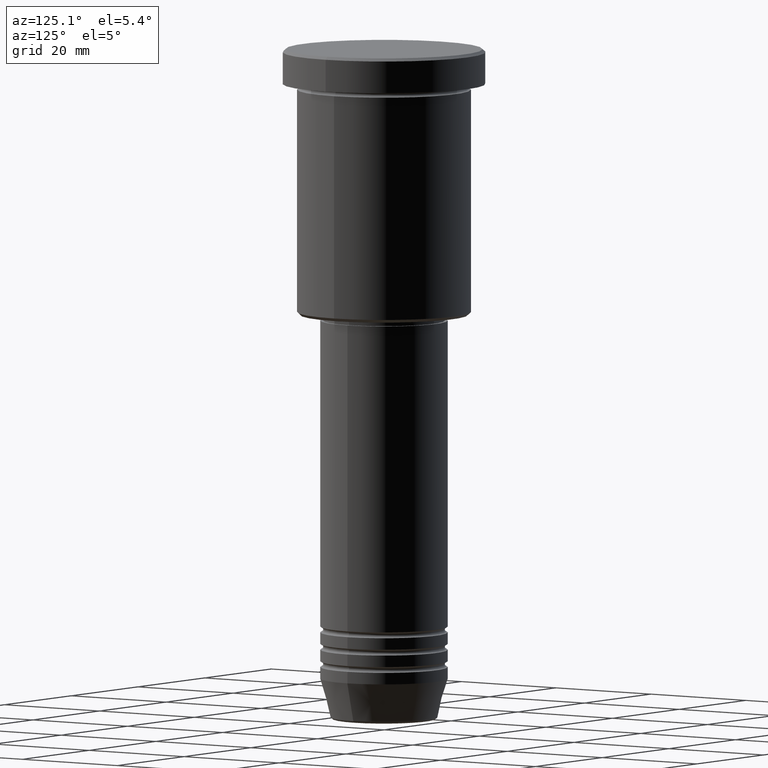
[diagram: clean part render]
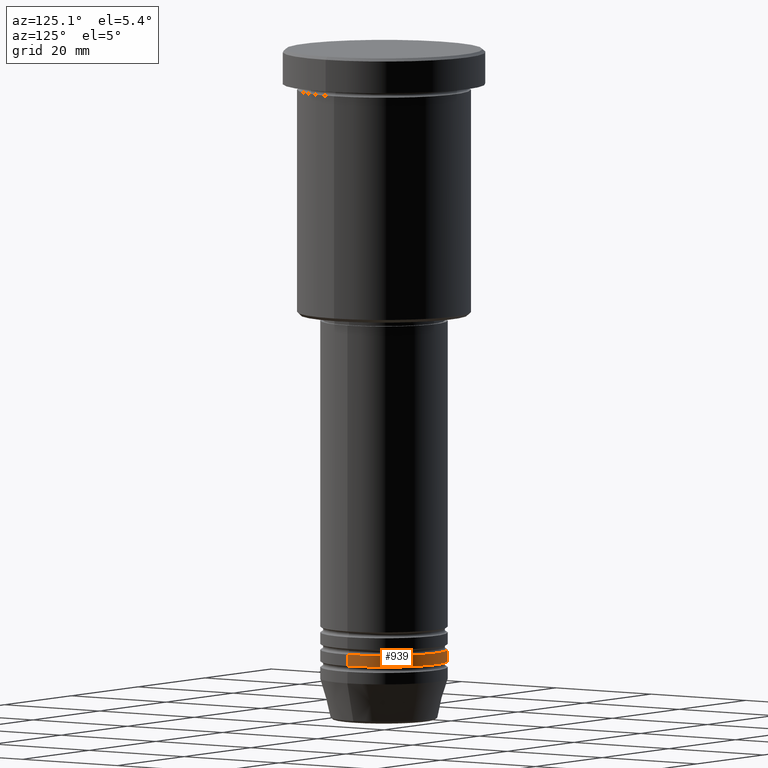
[diagram: same view with one face highlighted and labeled with its STEP entity id]
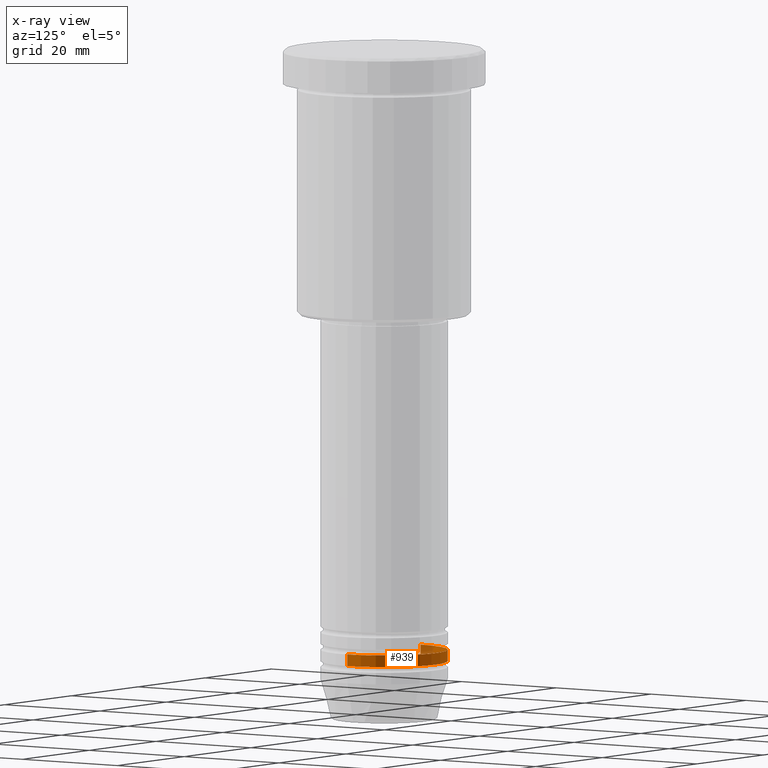
[diagram: x-ray of the same camera — body ghosted, the highlighted face saturated]
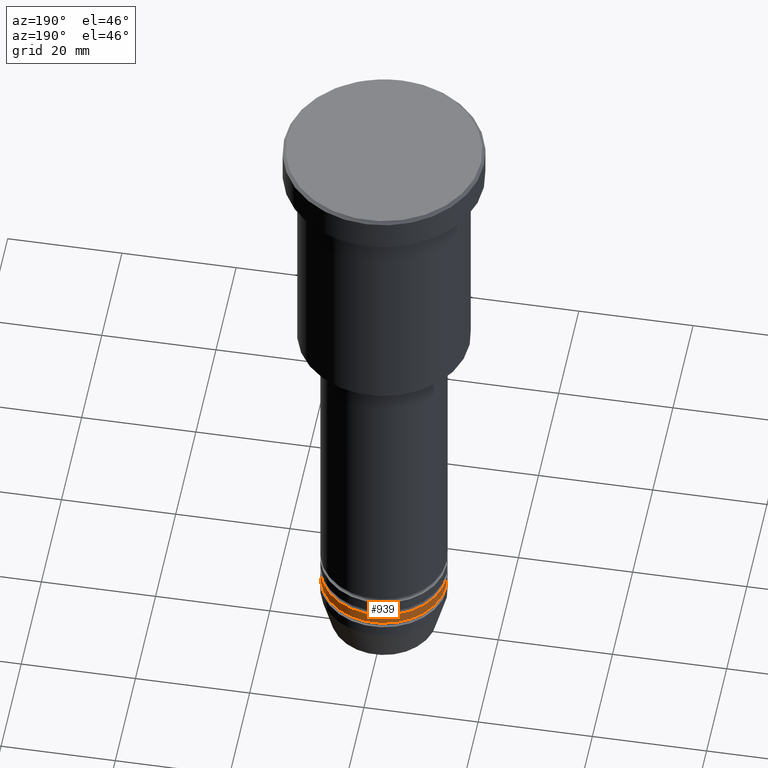
[diagram: same view with one face highlighted and labeled with its STEP entity id]
A machine part, auxiliary view. The second image highlights one B-rep face of the part: STEP entity #939.
The next image is the same camera in x-ray: the body ghosted, the highlighted face saturated — about 9% of this face is hidden behind the body in this view.
A second angle (auxiliary view) of the same face is appended — the face is thin or edge-on in the first view.
In plain terms, the highlighted cylindrical surface (partial cylindrical patch) has radius 11 mm, axis along (-0, -0, 1).
Its self-contained STEP definition (entity closure, byte-faithful):
#19 = CARTESIAN_POINT ( 'NONE',  ( 11.00000000000000000, 0.000000000000000000, -105.9999999999999858 ) ) ;
#24 = DIRECTION ( 'NONE',  ( 1.000000000000000000, 0.000000000000000000, 0.000000000000000000 ) ) ;
#44 = ORIENTED_EDGE ( 'NONE', *, *, #238, .T. ) ;
#84 = FACE_OUTER_BOUND ( 'NONE', #680, .T. ) ;
#127 = AXIS2_PLACEMENT_3D ( 'NONE', #917, #992, #1009 ) ;
#181 = CYLINDRICAL_SURFACE ( 'NONE', #629, 11.00000000000000000 ) ;
#205 = CIRCLE ( 'NONE', #551, 11.00000000000000000 ) ;
#222 = VECTOR ( 'NONE', #643, 1000.000000000000000 ) ;
#238 = EDGE_CURVE ( 'NONE', #860, #1131, #501, .T. ) ;
#269 = LINE ( 'NONE', #732, #222 ) ;
#283 = DIRECTION ( 'NONE',  ( -0.000000000000000000, -0.000000000000000000, 1.000000000000000000 ) ) ;
#349 = CARTESIAN_POINT ( 'NONE',  ( -11.00000000000000000, 1.347111479062088405E-15, -105.9999999999999858 ) ) ;
#355 = DIRECTION ( 'NONE',  ( 1.000000000000000000, 0.000000000000000000, 0.000000000000000000 ) ) ;
#501 = LINE ( 'NONE', #858, #829 ) ;
#506 = EDGE_CURVE ( 'NONE', #558, #1057, #269, .T. ) ;
#508 = CARTESIAN_POINT ( 'NONE',  ( -11.00000000000000000, 1.347111479062088405E-15, -104.0000000000000000 ) ) ;
#522 = EDGE_CURVE ( 'NONE', #558, #860, #1094, .T. ) ;
#551 = AXIS2_PLACEMENT_3D ( 'NONE', #845, #1125, #24 ) ;
#558 = VERTEX_POINT ( 'NONE', #19 ) ;
#620 = ORIENTED_EDGE ( 'NONE', *, *, #694, .F. ) ;
#629 = AXIS2_PLACEMENT_3D ( 'NONE', #821, #283, #355 ) ;
#643 = DIRECTION ( 'NONE',  ( -0.000000000000000000, -0.000000000000000000, 1.000000000000000000 ) ) ;
#680 = EDGE_LOOP ( 'NONE', ( #879, #44, #620, #1075 ) ) ;
#694 = EDGE_CURVE ( 'NONE', #1057, #1131, #205, .T. ) ;
#732 = CARTESIAN_POINT ( 'NONE',  ( 11.00000000000000000, 0.000000000000000000, 0.000000000000000000 ) ) ;
#821 = CARTESIAN_POINT ( 'NONE',  ( 0.000000000000000000, 0.000000000000000000, 0.000000000000000000 ) ) ;
#829 = VECTOR ( 'NONE', #877, 1000.000000000000000 ) ;
#840 = CARTESIAN_POINT ( 'NONE',  ( 11.00000000000000000, 0.000000000000000000, -104.0000000000000000 ) ) ;
#845 = CARTESIAN_POINT ( 'NONE',  ( 0.000000000000000000, 0.000000000000000000, -104.0000000000000000 ) ) ;
#858 = CARTESIAN_POINT ( 'NONE',  ( -11.00000000000000000, 1.347111479062088405E-15, 0.000000000000000000 ) ) ;
#860 = VERTEX_POINT ( 'NONE', #349 ) ;
#877 = DIRECTION ( 'NONE',  ( -0.000000000000000000, -0.000000000000000000, 1.000000000000000000 ) ) ;
#879 = ORIENTED_EDGE ( 'NONE', *, *, #522, .T. ) ;
#917 = CARTESIAN_POINT ( 'NONE',  ( 0.000000000000000000, 0.000000000000000000, -105.9999999999999858 ) ) ;
#939 = ADVANCED_FACE ( 'NONE', ( #84 ), #181, .T. ) ;
#992 = DIRECTION ( 'NONE',  ( -0.000000000000000000, -0.000000000000000000, 1.000000000000000000 ) ) ;
#1009 = DIRECTION ( 'NONE',  ( 1.000000000000000000, 0.000000000000000000, 0.000000000000000000 ) ) ;
#1057 = VERTEX_POINT ( 'NONE', #840 ) ;
#1075 = ORIENTED_EDGE ( 'NONE', *, *, #506, .F. ) ;
#1094 = CIRCLE ( 'NONE', #127, 11.00000000000000000 ) ;
#1125 = DIRECTION ( 'NONE',  ( -0.000000000000000000, -0.000000000000000000, 1.000000000000000000 ) ) ;
#1131 = VERTEX_POINT ( 'NONE', #508 ) ;